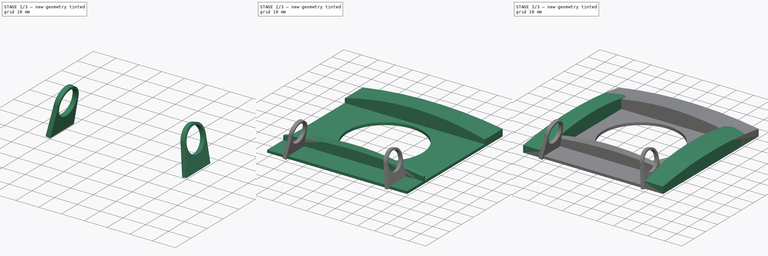
[diagram: build sequence overview — one tinted view per stage of 3, left to right]
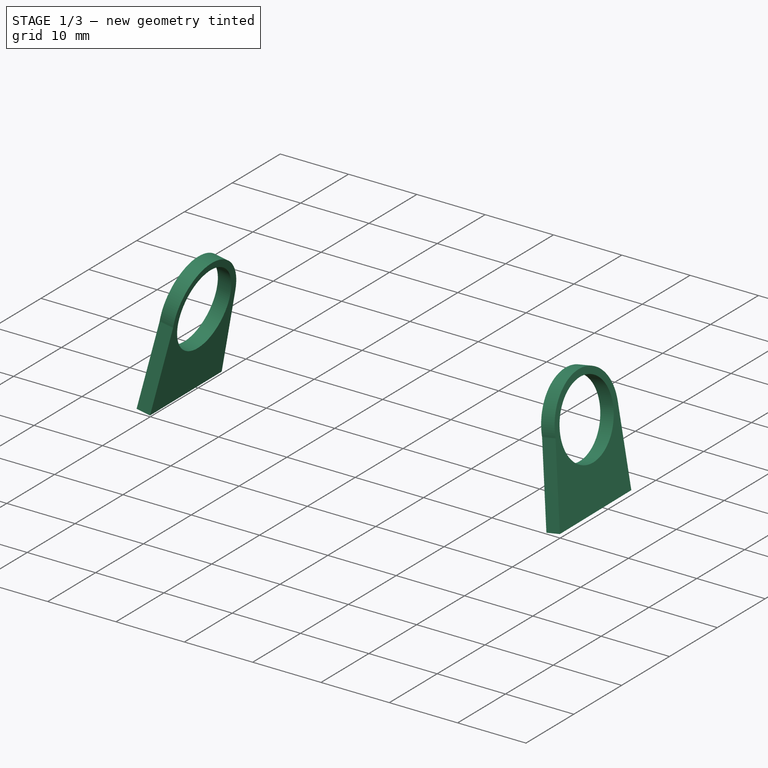
[diagram: stage 1 of 3 — iso view after this stage's code; geometry added in this stage tinted green]
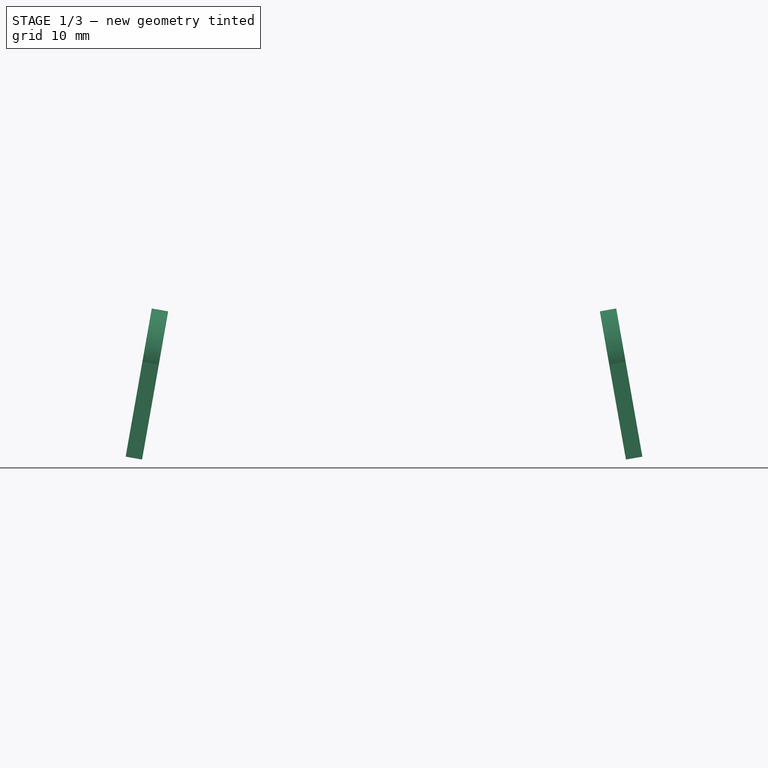
[diagram: stage 1 of 3 — front view after this stage's code; geometry added in this stage tinted green]
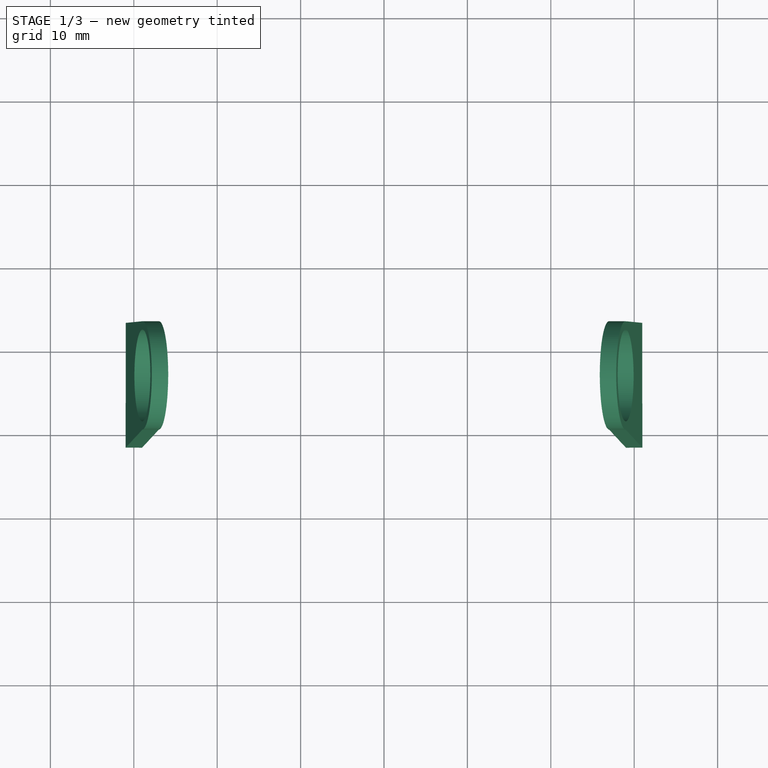
[diagram: stage 1 of 3 — top view after this stage's code; geometry added in this stage tinted green]
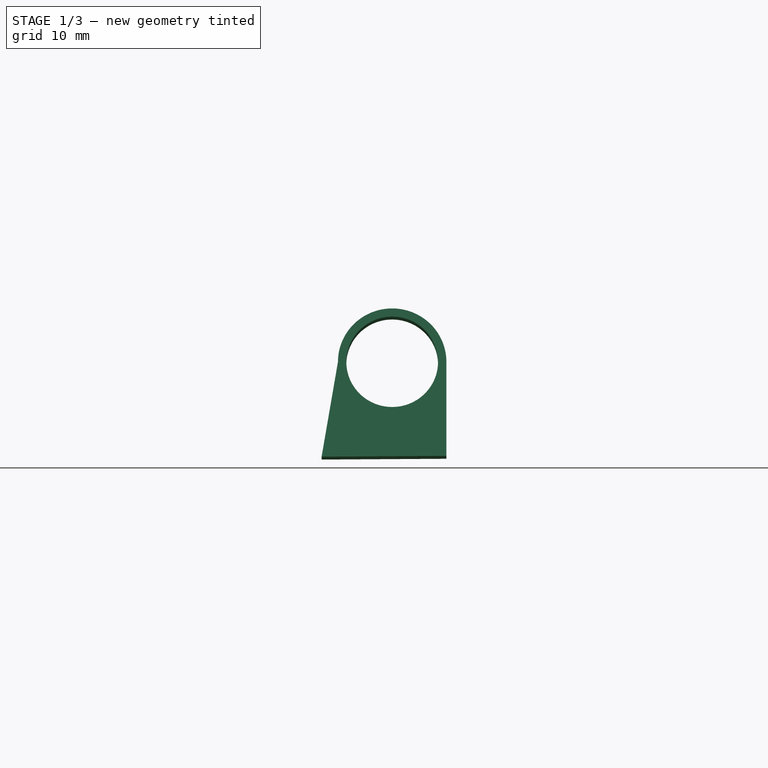
[diagram: stage 1 of 3 — right view after this stage's code; geometry added in this stage tinted green]
FCSTD DOCUMENT  (FreeCAD 0.19R24276 (Git))
Label: pir220
License: All rights reserved
LicenseURL: http://en.wikipedia.org/wiki/All_rights_reserved
objects: Sketcher::SketchObject×11, Part::Loft×4, Part::Extrusion×3, PartDesign::Body×1
note: 19 computed .brp shape members not serialized (recipe doc carries the construction recipe); baked Part::Feature solids carry a one-line shape summary decoded from their .brp

FEATURE [Sketcher::SketchObject] Sketch009
  AttachmentOffset = pos=(-33,0,-29) rot=(1,0,0;0.174533rad)
  FullyConstrained = false
  MapMode = 5
  Placement = pos=(-29,-33,9e-16) rot=(0.60812,0.60812,0.510274;2.19793rad)
  Support = -> [YZ_Plane]
  sketch-geometry (5):
    g0: LineSegment StartX=-8.46069 StartY=-0.0472194 StartZ=0 EndX=-6.5 EndY=11.5 EndZ=0
    g1: LineSegment StartX=-8.46069 StartY=-0.0472194 StartZ=0 EndX=6.5 EndY=0.0476245 EndZ=0
    g2: LineSegment StartX=6.5 StartY=0.0476245 StartZ=0 EndX=6.5 EndY=11.5 EndZ=0
    g3: Circle CenterX=0 CenterY=11.5 CenterZ=0 NormalX=0 NormalY=0 NormalZ=1 AngleXU=0 Radius=5.5
    g4: ArcOfCircle CenterX=4e-16 CenterY=11.5 CenterZ=0 NormalX=0 NormalY=0 NormalZ=1 AngleXU=0 Radius=6.5 StartAngle=0 EndAngle=3.14159
  constraints (11):
    c: Coincident(g0,g1)
    c: Coincident(g1,g2)
    c: Symmetric(g0,g2,g-2)
    c: Vertical(g2)
    c: DistanceY(g0) = 11.5
    c: DistanceY(g3) = 11.5
    c: Coincident(g4,g0)
    c: Coincident(g4,g2)
    c: DistanceY(g4) = 11.5
    c: DistanceX(g-1,g2) = 6.5
    c: Angle(g1,g0) = 1.39626
FEATURE [Part::Extrusion] Extrude001
  Base = -> Sketch009
  Dir = (0.984808,-3e-16,-0.173648)
  DirMode = 2
  FaceMakerClass = Part::FaceMakerBullseye
  LengthFwd = 2
  LengthRev = 0
  Reversed = true
  Solid = true
  Symmetric = false
FEATURE [Sketcher::SketchObject] Sketch010
  AttachmentOffset = pos=(-33,0,29) rot=(1,0,0;-0.174533rad)
  FullyConstrained = false
  MapMode = 5
  Placement = pos=(29,-33,1.38e-14) rot=(-0.540716,-0.540716,-0.6444;4.28645rad)
  Support = -> [YZ_Plane]
  sketch-geometry (5):
    g0: LineSegment StartX=-8.46069 StartY=-0.0472194 StartZ=0 EndX=-6.5 EndY=11.5 EndZ=0
    g1: LineSegment StartX=-8.46069 StartY=-0.0472194 StartZ=0 EndX=6.5 EndY=0.0476245 EndZ=0
    g2: LineSegment StartX=6.5 StartY=0.0476245 StartZ=0 EndX=6.5 EndY=11.5 EndZ=0
    g3: Circle CenterX=0 CenterY=11.5 CenterZ=0 NormalX=0 NormalY=0 NormalZ=1 AngleXU=0 Radius=5.5
    g4: ArcOfCircle CenterX=4e-16 CenterY=11.5 CenterZ=0 NormalX=0 NormalY=0 NormalZ=1 AngleXU=0 Radius=6.5 StartAngle=0 EndAngle=3.14159
  constraints (11):
    c: Coincident(g0,g1)
    c: Coincident(g1,g2)
    c: Symmetric(g0,g2,g-2)
    c: Vertical(g2)
    c: DistanceY(g0) = 11.5
    c: DistanceY(g3) = 11.5
    c: Coincident(g4,g0)
    c: Coincident(g4,g2)
    c: DistanceY(g4) = 11.5
    c: DistanceX(g-1,g2) = 6.5
    c: Angle(g1,g0) = 1.39626
FEATURE [PartDesign::Body] Body
  Group = -> [Sketch,Sketch001,Sketch002,Sketch003,Sketch004,Sketch005,Sketch006,Sketch007,Sketch008,Sketch009,Sketch010]
  Origin = -> Origin
FEATURE [Part::Extrusion] Extrude001001
  Base = -> Sketch010
  Dir = (0.984808,0,0.173648)
  DirMode = 2
  FaceMakerClass = Part::FaceMakerBullseye
  LengthFwd = 2
  LengthRev = 0
  Solid = true
  Symmetric = false
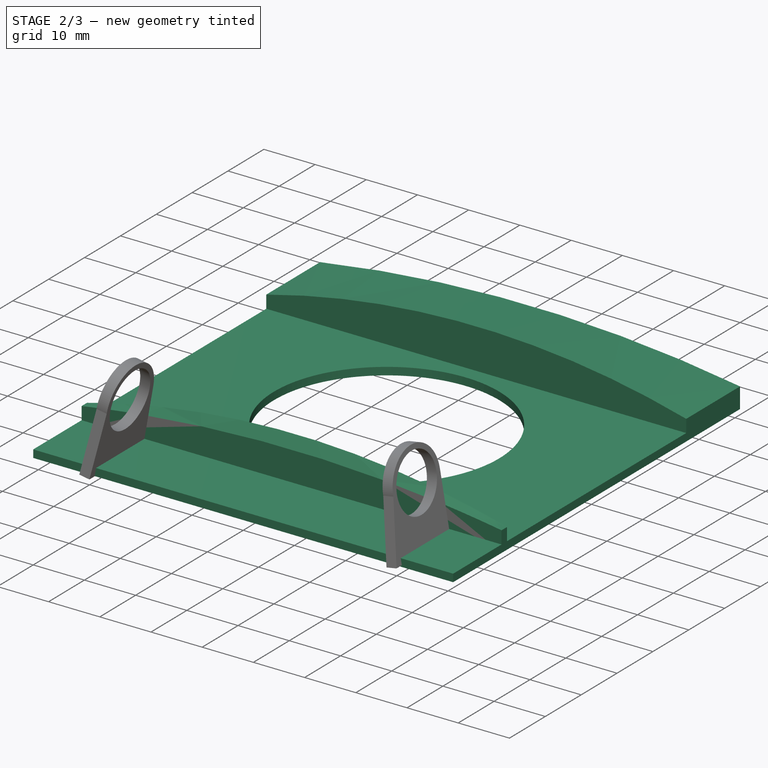
[diagram: stage 2 of 3 — iso view after this stage's code; geometry added in this stage tinted green]
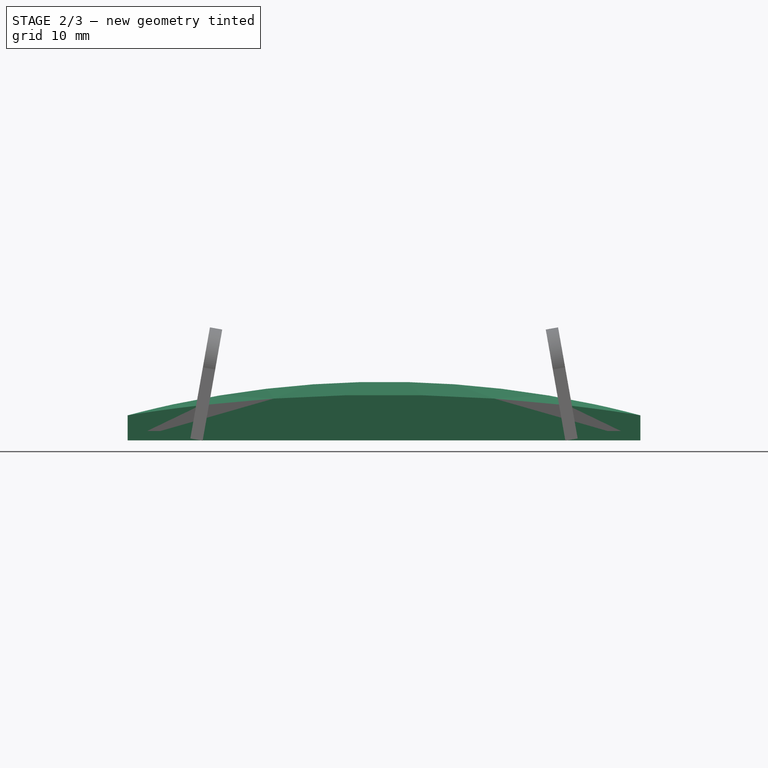
[diagram: stage 2 of 3 — front view after this stage's code; geometry added in this stage tinted green]
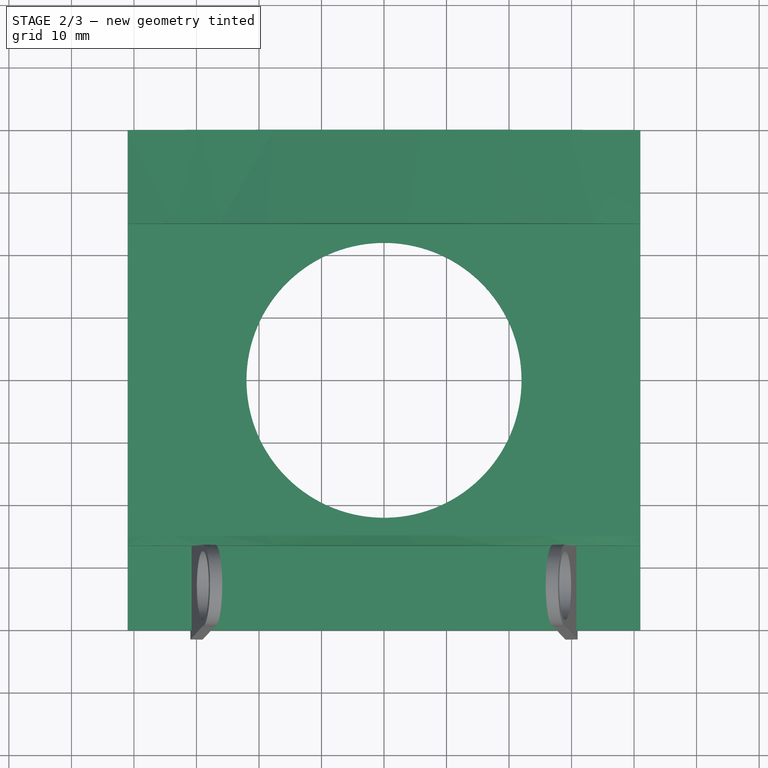
[diagram: stage 2 of 3 — top view after this stage's code; geometry added in this stage tinted green]
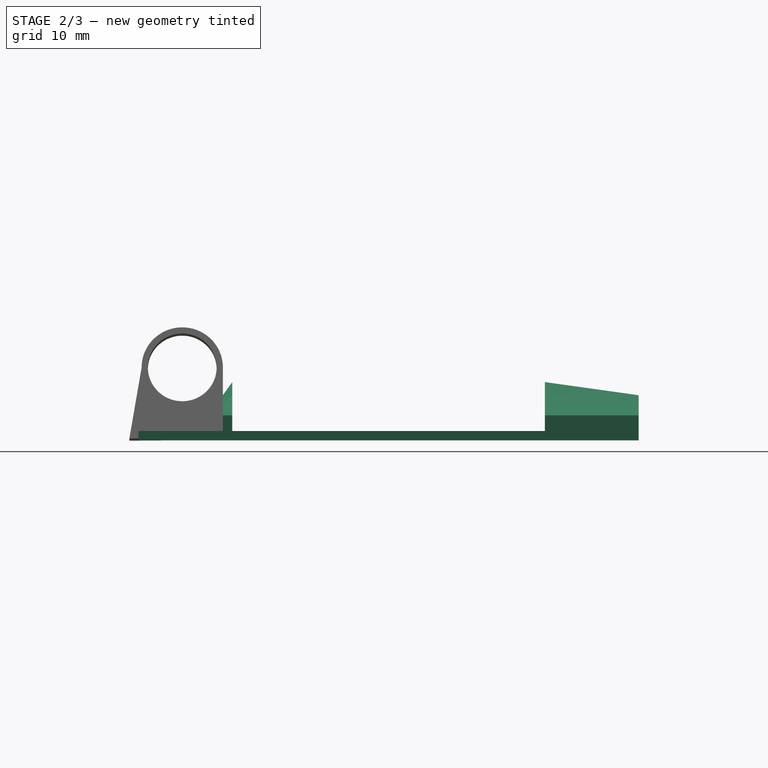
[diagram: stage 2 of 3 — right view after this stage's code; geometry added in this stage tinted green]
FEATURE [Sketcher::SketchObject] Sketch005
  AttachmentOffset = pos=(0,0,-40) rot=(0,0,1;0rad)
  FullyConstrained = true
  MapMode = 5
  Placement = pos=(0,40,-8.9e-15) rot=(1,0,0;1.5708rad)
  Support = -> [XZ_Plane]
  sketch-geometry (4):
    g0: LineSegment StartX=-41 StartY=0 StartZ=0 EndX=-41 EndY=4 EndZ=0
    g1: LineSegment StartX=-41 StartY=0 StartZ=0 EndX=41 EndY=0 EndZ=0
    g2: LineSegment StartX=41 StartY=0 StartZ=0 EndX=41 EndY=4 EndZ=0
    g3: ArcOfCircle CenterX=-6.8e-14 CenterY=-250 CenterZ=0 NormalX=0 NormalY=0 NormalZ=1 AngleXU=0 Radius=257.288 StartAngle=1.41076 EndAngle=1.73083
  constraints (12):
    c: Vertical(g0)
    c: DistanceY(g0) = 4
    c: DistanceX(g1) = 82
    c: Symmetric(g1,g1,g-2)
    c: Block(g1)
    c: Vertical(g2)
    c: DistanceY(g2) = 4
    c: Coincident(g0,g1)
    c: Coincident(g1,g2)
    c: DistanceY(g3) = -250
    c: Coincident(g0,g3)
    c: Coincident(g2,g3)
FEATURE [Sketcher::SketchObject] Sketch006
  AttachmentOffset = pos=(0,0,-25) rot=(0,0,1;0rad)
  FullyConstrained = true
  MapMode = 5
  Placement = pos=(0,25,-5.6e-15) rot=(1,0,0;1.5708rad)
  Support = -> [XZ_Plane]
  sketch-geometry (4):
    g0: LineSegment StartX=-41 StartY=0 StartZ=0 EndX=-41 EndY=4 EndZ=0
    g1: LineSegment StartX=-41 StartY=0 StartZ=0 EndX=41 EndY=0 EndZ=0
    g2: LineSegment StartX=41 StartY=0 StartZ=0 EndX=41 EndY=4 EndZ=0
    g3: ArcOfCircle CenterX=7.587e-13 CenterY=-150 CenterZ=0 NormalX=0 NormalY=0 NormalZ=1 AngleXU=0 Radius=159.364 StartAngle=1.3106 EndAngle=1.83099
  constraints (12):
    c: Vertical(g0)
    c: DistanceY(g0) = 4
    c: DistanceX(g1) = 82
    c: Symmetric(g1,g1,g-2)
    c: Block(g1)
    c: Vertical(g2)
    c: DistanceY(g2) = 4
    c: Coincident(g0,g1)
    c: Coincident(g1,g2)
    c: DistanceY(g3) = -150
    c: Coincident(g0,g3)
    c: Coincident(g2,g3)
FEATURE [Part::Loft] Loft002
  Closed = false
  MaxDegree = 5
  Ruled = false
  Sections = -> [Sketch005,Sketch006]
  Solid = true
FEATURE [Sketcher::SketchObject] Sketch007
  AttachmentOffset = pos=(0,0,26.5) rot=(0,0,1;0rad)
  FullyConstrained = true
  MapMode = 5
  Placement = pos=(0,-26.5,5.9e-15) rot=(1,0,0;1.5708rad)
  Support = -> [XZ_Plane]
  sketch-geometry (4):
    g0: LineSegment StartX=-41 StartY=0 StartZ=0 EndX=-41 EndY=4 EndZ=0
    g1: LineSegment StartX=-41 StartY=0 StartZ=0 EndX=41 EndY=0 EndZ=0
    g2: LineSegment StartX=41 StartY=0 StartZ=0 EndX=41 EndY=4 EndZ=0
    g3: ArcOfCircle CenterX=6.1e-15 CenterY=-250 CenterZ=0 NormalX=0 NormalY=0 NormalZ=1 AngleXU=0 Radius=257.288 StartAngle=1.41076 EndAngle=1.73083
  constraints (12):
    c: Vertical(g0)
    c: DistanceY(g0) = 4
    c: DistanceX(g1) = 82
    c: Symmetric(g1,g1,g-2)
    c: Block(g1)
    c: Vertical(g2)
    c: DistanceY(g2) = 4
    c: Coincident(g0,g1)
    c: Coincident(g1,g2)
    c: DistanceY(g3) = -250
    c: Coincident(g0,g3)
    c: Coincident(g2,g3)
FEATURE [Sketcher::SketchObject] Sketch008
  AttachmentOffset = pos=(0,0,25) rot=(0,0,1;0rad)
  FullyConstrained = true
  MapMode = 5
  Placement = pos=(0,-25,5.6e-15) rot=(1,0,0;1.5708rad)
  Support = -> [XZ_Plane]
  sketch-geometry (4):
    g0: LineSegment StartX=-41 StartY=0 StartZ=0 EndX=-41 EndY=4 EndZ=0
    g1: LineSegment StartX=-41 StartY=0 StartZ=0 EndX=41 EndY=0 EndZ=0
    g2: LineSegment StartX=41 StartY=0 StartZ=0 EndX=41 EndY=4 EndZ=0
    g3: ArcOfCircle CenterX=7.611e-13 CenterY=-150 CenterZ=0 NormalX=0 NormalY=0 NormalZ=1 AngleXU=0 Radius=159.364 StartAngle=1.3106 EndAngle=1.83099
  constraints (12):
    c: Vertical(g0)
    c: DistanceY(g0) = 4
    c: DistanceX(g1) = 82
    c: Symmetric(g1,g1,g-2)
    c: Block(g1)
    c: Vertical(g2)
    c: DistanceY(g2) = 4
    c: Coincident(g0,g1)
    c: Coincident(g1,g2)
    c: DistanceY(g3) = -150
    c: Coincident(g0,g3)
    c: Coincident(g2,g3)
FEATURE [Part::Loft] Loft003
  Closed = false
  MaxDegree = 5
  Ruled = false
  Sections = -> [Sketch007,Sketch008]
  Solid = true
FEATURE [Part::Extrusion] Extrude
  Base = -> Sketch
  Dir = (0,0,1)
  DirMode = 2
  FaceMakerClass = Part::FaceMakerBullseye
  LengthFwd = 1.5
  LengthRev = 0
  Solid = true
  Symmetric = false
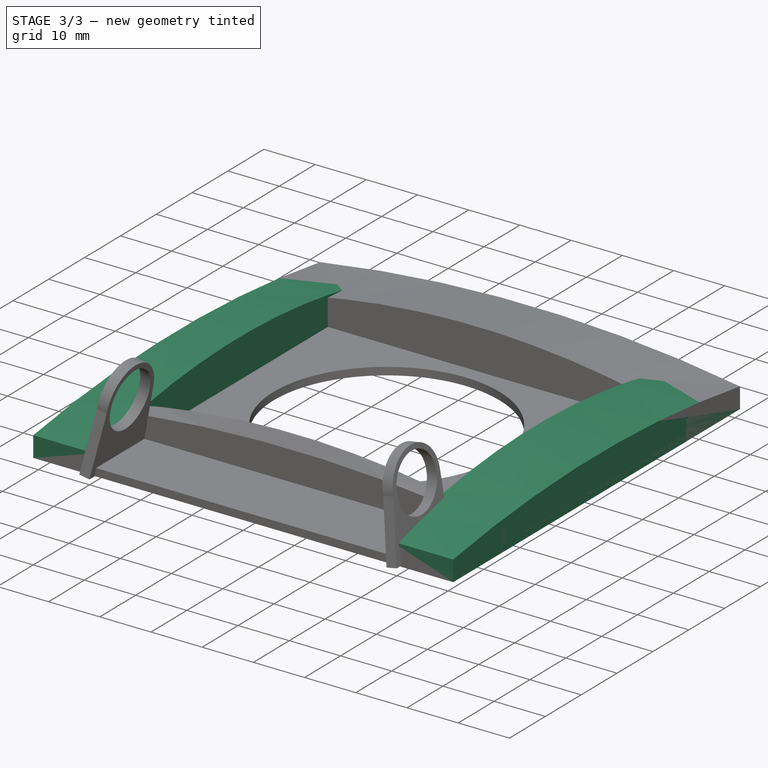
[diagram: stage 3 of 3 — iso view after this stage's code; geometry added in this stage tinted green]
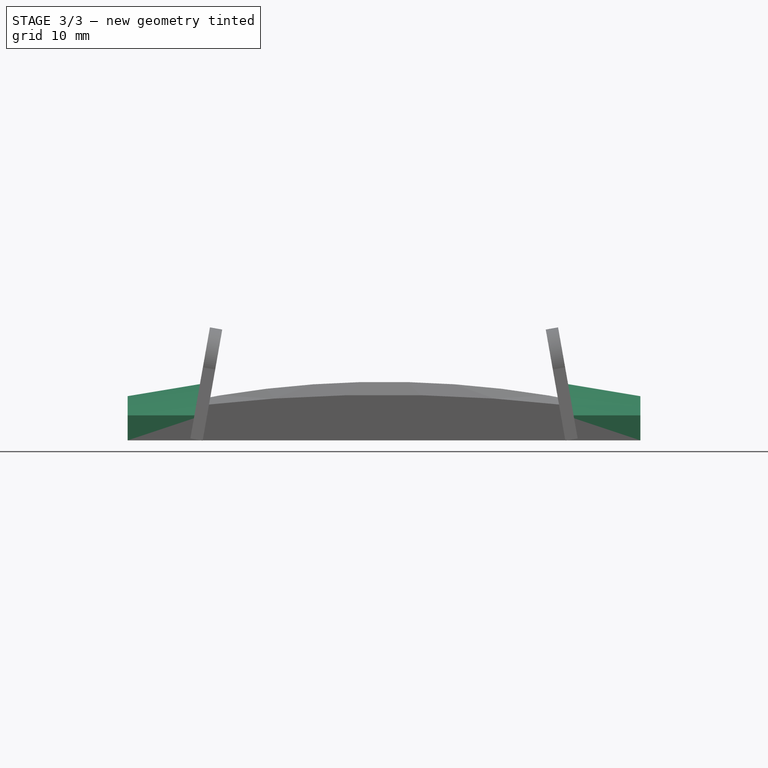
[diagram: stage 3 of 3 — front view after this stage's code; geometry added in this stage tinted green]
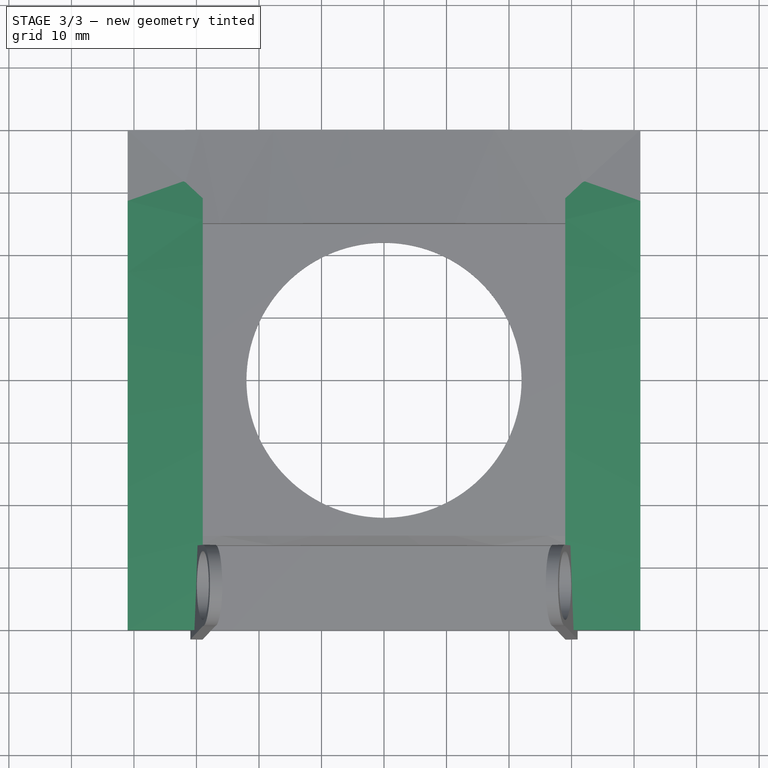
[diagram: stage 3 of 3 — top view after this stage's code; geometry added in this stage tinted green]
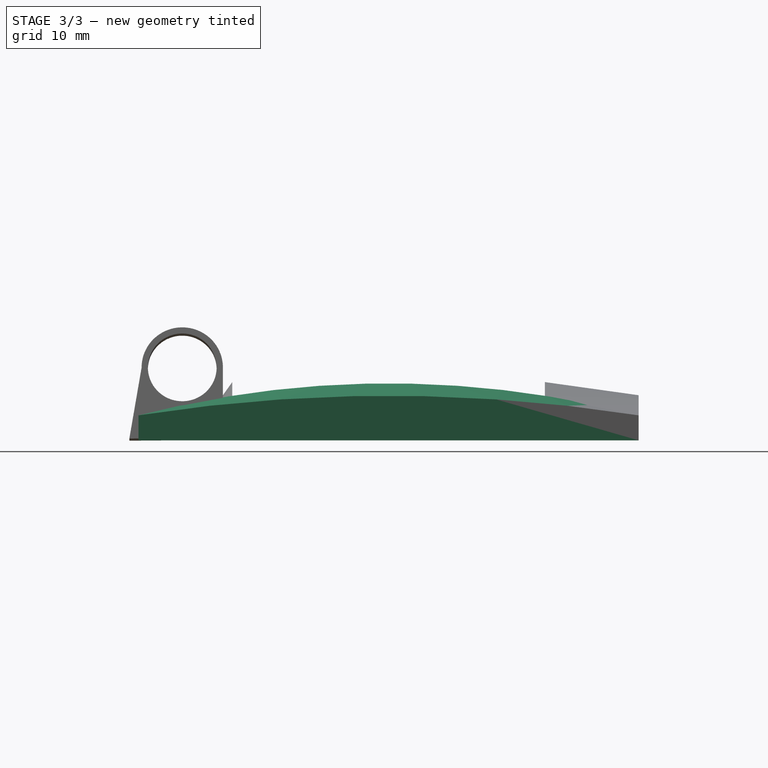
[diagram: stage 3 of 3 — right view after this stage's code; geometry added in this stage tinted green]
FEATURE [Sketcher::SketchObject] Sketch
  FullyConstrained = false
  MapMode = 5
  Support = -> [XY_Plane]
  sketch-geometry (5):
    g0: LineSegment StartX=-41 StartY=-40 StartZ=0 EndX=-41 EndY=40 EndZ=0
    g1: LineSegment StartX=-41 StartY=-40 StartZ=0 EndX=41 EndY=-40 EndZ=0
    g2: LineSegment StartX=41 StartY=-40 StartZ=0 EndX=41 EndY=40 EndZ=0
    g3: LineSegment StartX=-41 StartY=40 StartZ=0 EndX=41 EndY=40 EndZ=0
    g4: Circle CenterX=0 CenterY=0 CenterZ=0 NormalX=0 NormalY=0 NormalZ=1 AngleXU=0 Radius=22
  constraints (11):
    c: DistanceY(g0) = 80
    c: DistanceX(g1) = 82
    c: DistanceY(g2) = 80
    c: DistanceX(g3) = 82
    c: Coincident(g0,g1)
    c: Coincident(g1,g2)
    c: Coincident(g2,g3)
    c: Coincident(g3,g0)
    c: Symmetric(g0,g0,g-1)
    c: Symmetric(g1,g1,g-2)
    c: Radius(g4) = 22
FEATURE [Sketcher::SketchObject] Sketch001
  AttachmentOffset = pos=(0,0,-29) rot=(0,0,1;0rad)
  FullyConstrained = true
  MapMode = 5
  Placement = pos=(-29,6.4e-15,-6.4e-15) rot=(0.57735,0.57735,0.57735;2.0944rad)
  Support = -> [YZ_Plane]
  sketch-geometry (4):
    g0: LineSegment StartX=-40 StartY=0 StartZ=0 EndX=-40 EndY=4 EndZ=0
    g1: LineSegment StartX=-40 StartY=0 StartZ=0 EndX=40 EndY=0 EndZ=0
    g2: LineSegment StartX=40 StartY=0 StartZ=0 EndX=40 EndY=4 EndZ=0
    g3: ArcOfCircle CenterX=3.33e-14 CenterY=-150 CenterZ=0 NormalX=0 NormalY=0 NormalZ=1 AngleXU=0 Radius=159.11 StartAngle=1.31667 EndAngle=1.82492
  constraints (12):
    c: Vertical(g0)
    c: DistanceY(g0) = 4
    c: DistanceX(g1) = 80
    c: Symmetric(g1,g1,g-2)
    c: Block(g1)
    c: Vertical(g2)
    c: DistanceY(g2) = 4
    c: Coincident(g0,g1)
    c: Coincident(g1,g2)
    c: DistanceY(g3) = -150
    c: Coincident(g0,g3)
    c: Coincident(g2,g3)
FEATURE [Sketcher::SketchObject] Sketch002
  AttachmentOffset = pos=(0,0,-41) rot=(0,0,1;0rad)
  FullyConstrained = true
  MapMode = 5
  Placement = pos=(-41,9.1e-15,-9.1e-15) rot=(0.57735,0.57735,0.57735;2.0944rad)
  Support = -> [YZ_Plane]
  sketch-geometry (4):
    g0: LineSegment StartX=-40 StartY=0 StartZ=0 EndX=-40 EndY=4 EndZ=0
    g1: LineSegment StartX=-40 StartY=0 StartZ=0 EndX=40 EndY=0 EndZ=0
    g2: LineSegment StartX=40 StartY=0 StartZ=0 EndX=40 EndY=4 EndZ=0
    g3: ArcOfCircle CenterX=9.2e-15 CenterY=-250 CenterZ=0 NormalX=0 NormalY=0 NormalZ=1 AngleXU=0 Radius=257.13 StartAngle=1.4146 EndAngle=1.72699
  constraints (12):
    c: Vertical(g0)
    c: DistanceY(g0) = 4
    c: DistanceX(g1) = 80
    c: Symmetric(g1,g1,g-2)
    c: Block(g1)
    c: Vertical(g2)
    c: DistanceY(g2) = 4
    c: Coincident(g0,g1)
    c: Coincident(g1,g2)
    c: DistanceY(g3) = -250
    c: Coincident(g0,g3)
    c: Coincident(g2,g3)
FEATURE [Part::Loft] Loft
  Closed = false
  MaxDegree = 5
  Ruled = false
  Sections = -> [Sketch001,Sketch002]
  Solid = true
FEATURE [Sketcher::SketchObject] Sketch003
  AttachmentOffset = pos=(0,0,29) rot=(0,0,1;0rad)
  FullyConstrained = true
  MapMode = 5
  Placement = pos=(29,-6.4e-15,6.4e-15) rot=(0.57735,0.57735,0.57735;2.0944rad)
  Support = -> [YZ_Plane]
  sketch-geometry (4):
    g0: LineSegment StartX=-40 StartY=0 StartZ=0 EndX=-40 EndY=4 EndZ=0
    g1: LineSegment StartX=-40 StartY=0 StartZ=0 EndX=40 EndY=0 EndZ=0
    g2: LineSegment StartX=40 StartY=0 StartZ=0 EndX=40 EndY=4 EndZ=0
    g3: ArcOfCircle CenterX=1.254e-12 CenterY=-150 CenterZ=0 NormalX=0 NormalY=0 NormalZ=1 AngleXU=0 Radius=159.11 StartAngle=1.31667 EndAngle=1.82492
  constraints (12):
    c: Vertical(g0)
    c: DistanceY(g0) = 4
    c: DistanceX(g1) = 80
    c: Symmetric(g1,g1,g-2)
    c: Block(g1)
    c: Vertical(g2)
    c: DistanceY(g2) = 4
    c: Coincident(g0,g1)
    c: Coincident(g1,g2)
    c: DistanceY(g3) = -150
    c: Coincident(g0,g3)
    c: Coincident(g2,g3)
FEATURE [Sketcher::SketchObject] Sketch004
  AttachmentOffset = pos=(0,0,41) rot=(0,0,1;0rad)
  FullyConstrained = true
  MapMode = 5
  Placement = pos=(41,-9.1e-15,9.1e-15) rot=(0.57735,0.57735,0.57735;2.0944rad)
  Support = -> [YZ_Plane]
  sketch-geometry (4):
    g0: LineSegment StartX=-40 StartY=0 StartZ=0 EndX=-40 EndY=4 EndZ=0
    g1: LineSegment StartX=-40 StartY=0 StartZ=0 EndX=40 EndY=0 EndZ=0
    g2: LineSegment StartX=40 StartY=0 StartZ=0 EndX=40 EndY=4 EndZ=0
    g3: ArcOfCircle CenterX=-4.8e-15 CenterY=-250 CenterZ=0 NormalX=0 NormalY=0 NormalZ=1 AngleXU=0 Radius=257.13 StartAngle=1.4146 EndAngle=1.72699
  constraints (12):
    c: Vertical(g0)
    c: DistanceY(g0) = 4
    c: DistanceX(g1) = 80
    c: Symmetric(g1,g1,g-2)
    c: Block(g1)
    c: Vertical(g2)
    c: DistanceY(g2) = 4
    c: Coincident(g0,g1)
    c: Coincident(g1,g2)
    c: DistanceY(g3) = -250
    c: Coincident(g0,g3)
    c: Coincident(g2,g3)
FEATURE [Part::Loft] Loft001
  Closed = false
  MaxDegree = 5
  Ruled = false
  Sections = -> [Sketch003,Sketch004]
  Solid = true
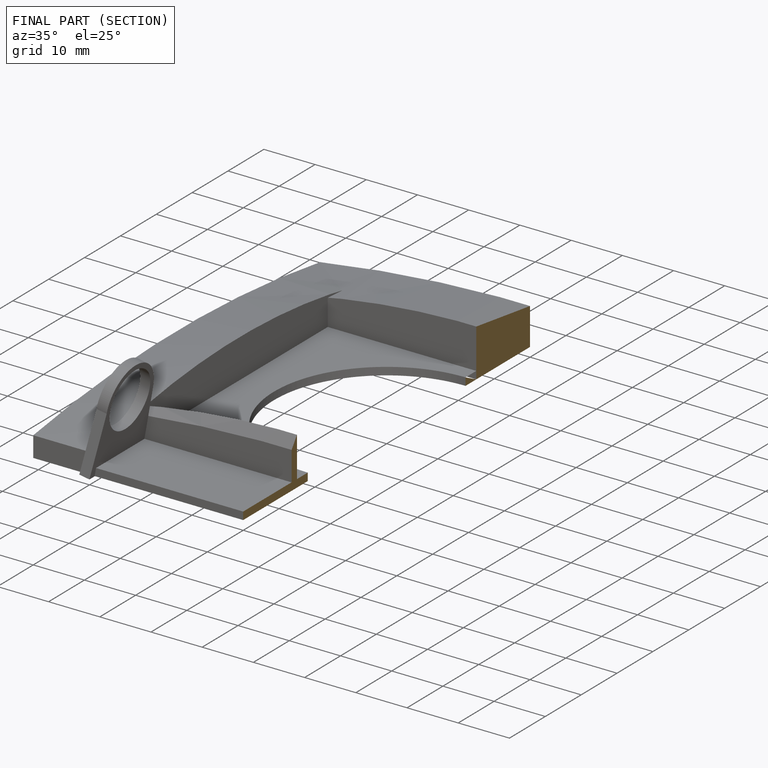
[diagram: finished part — half-section view (interior)]
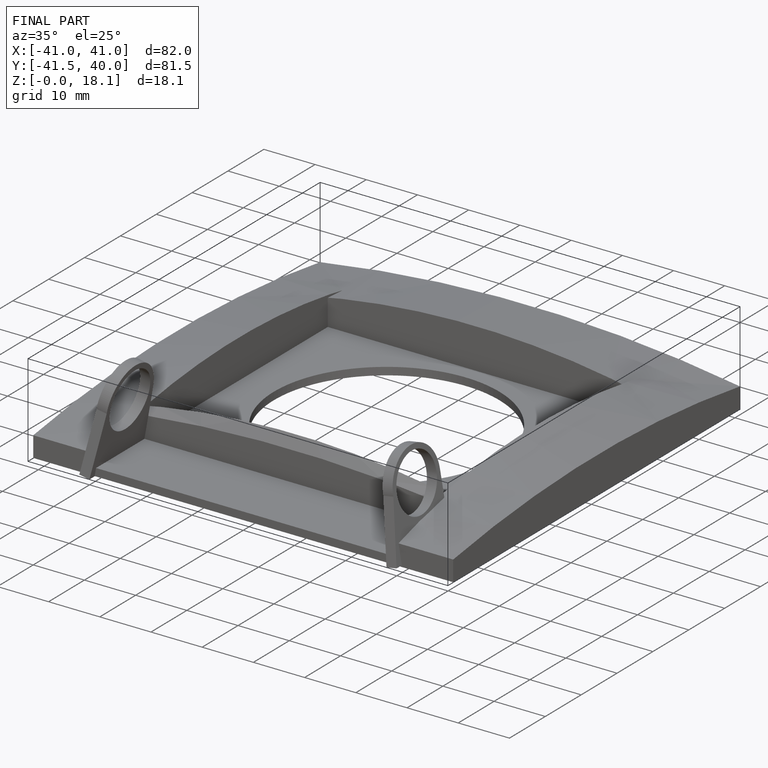
[diagram: finished part — iso view with bounding-box wireframe]
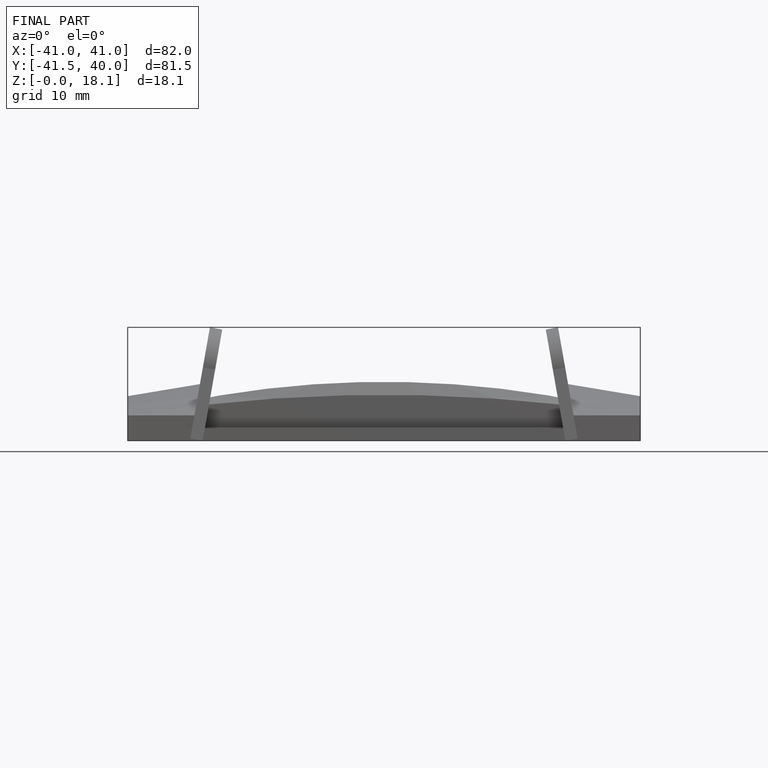
[diagram: finished part — front view with bounding-box wireframe]
